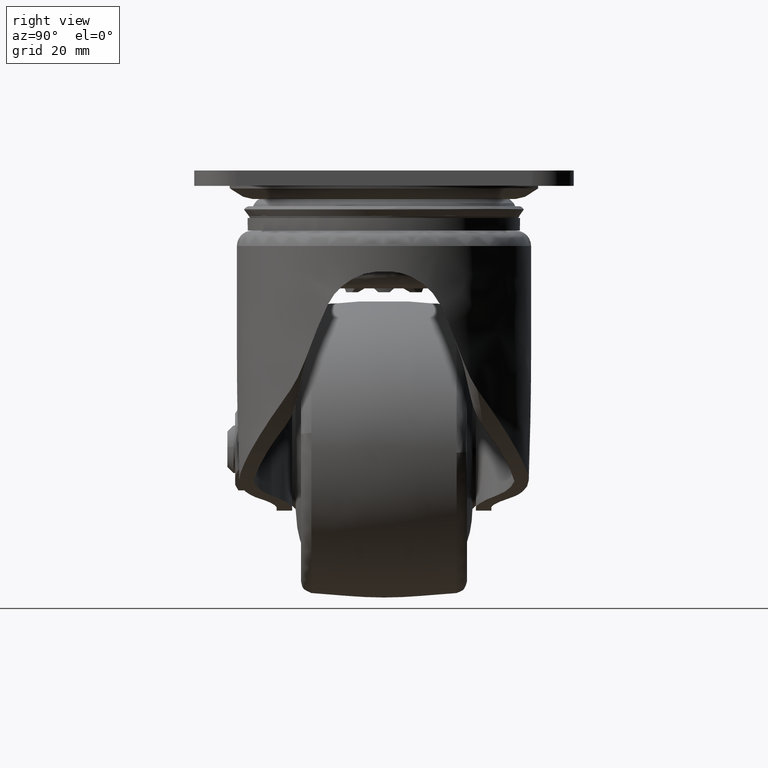
[diagram: clean part render]
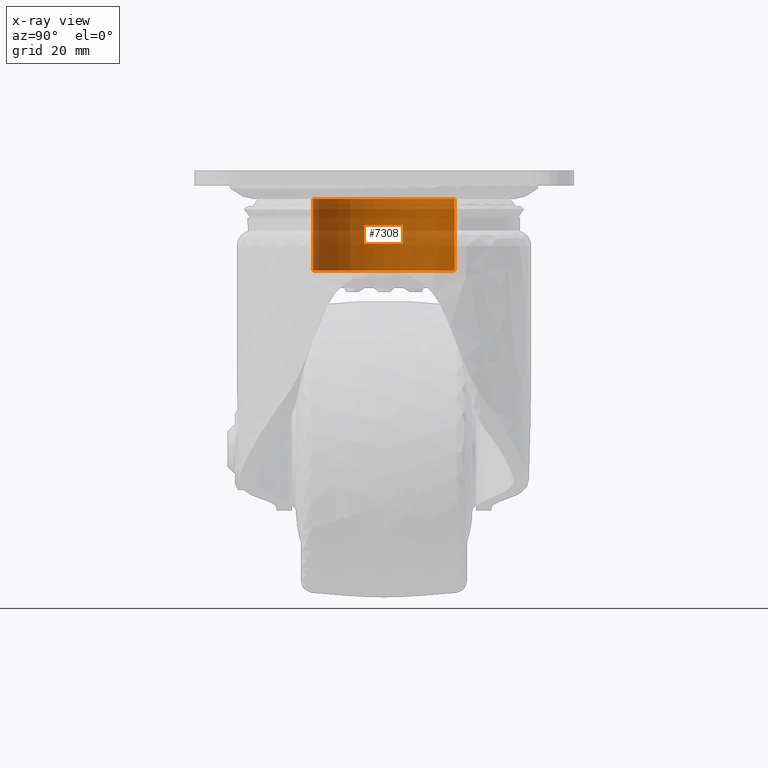
[diagram: x-ray — body ghosted, one internal face saturated and labeled with its STEP entity id]
A machine part, right view, then the same camera in x-ray: the body is ghosted and one INTERNAL B-rep face — a face not visible from any outside direction — is saturated and labeled: STEP entity #7308.
In plain terms, the highlighted face is a freeform B-spline surface patch.
Its self-contained STEP definition (entity closure, byte-faithful):
#7145=CARTESIAN_POINT('',(-1.416403589148358,11.916115175366279,-16.881999999999959));
#7146=VERTEX_POINT('',#7145);
#7164=CARTESIAN_POINT('',(0.732569298149068,-11.977618386943000,-16.882000000000112));
#7165=VERTEX_POINT('',#7164);
#7179=CARTESIAN_POINT('',(0.732569460903938,-11.977618376988850,-4.798080000000000));
#7180=VERTEX_POINT('',#7179);
#7181=CARTESIAN_POINT('',(0.732569460903938,-11.977618376988850,-4.798080000000000));
#7182=CARTESIAN_POINT('',(0.732569298149068,-11.977618386943000,-16.882000000000112));
#7183=QUASI_UNIFORM_CURVE('',1,(#7181,#7182),.UNSPECIFIED.,.F.,.U.);
#7184=EDGE_CURVE('',#7180,#7165,#7183,.T.);
#7201=CARTESIAN_POINT('',(-1.416403678197791,11.916115164781520,-4.798080000000000));
#7202=VERTEX_POINT('',#7201);
#7218=CARTESIAN_POINT('',(-1.416403678197791,11.916115164781520,-4.798080000000000));
#7219=CARTESIAN_POINT('',(-1.416403589148358,11.916115175366279,-16.881999999999959));
#7220=QUASI_UNIFORM_CURVE('',1,(#7218,#7219),.UNSPECIFIED.,.F.,.U.);
#7221=EDGE_CURVE('',#7202,#7146,#7220,.T.);
#7226=CARTESIAN_POINT('',(0.732582474418284,-11.977617581062400,-4.495981999999998));
#7227=CARTESIAN_POINT('',(-11.245035106644117,-12.710200055480684,-4.495981999999998));
#7228=CARTESIAN_POINT('',(-11.977617581062400,-0.732582474418284,-4.495981999999998));
#7229=CARTESIAN_POINT('',(-12.669434360790328,10.578521890074013,-4.495981999999997));
#7230=CARTESIAN_POINT('',(-1.416410815881102,11.916114316363995,-4.495981999999999));
#7231=CARTESIAN_POINT('',(0.732582474418284,-11.977617581062400,-17.191650450000012));
#7232=CARTESIAN_POINT('',(-11.245035106644117,-12.710200055480684,-17.191650450000012));
#7233=CARTESIAN_POINT('',(-11.977617581062400,-0.732582474418284,-17.191650450000012));
#7234=CARTESIAN_POINT('',(-12.669434360790328,10.578521890074013,-17.191650450000012));
#7235=CARTESIAN_POINT('',(-1.416410815881102,11.916114316363995,-17.191650450000012));
#7243=(BOUNDED_SURFACE()B_SPLINE_SURFACE(2,1,((#7226,#7231),(#7227,#7232),(#7228,#7233),(#7229,#7234),(#7230,#7235)),.UNSPECIFIED.,.F.,.F.,.U.)B_SPLINE_SURFACE_WITH_KNOTS((3,2,3),(2,2),(0.0,19.882250993908560,38.969211948060767),(0.0,12.695668450000010),.UNSPECIFIED.)GEOMETRIC_REPRESENTATION_ITEM()RATIONAL_B_SPLINE_SURFACE(((1.0,1.0),(0.707106781186548,0.707106781186548),(1.0,1.0),(0.718822509939086,0.718822509939086),(0.977505800795127,0.977505800795127)))REPRESENTATION_ITEM('')SURFACE());
#7244=CARTESIAN_POINT('',(-12.0,0.0,-16.882000000000001));
#7245=VERTEX_POINT('',#7244);
#7246=CARTESIAN_POINT('',(-12.0,0.0,-16.882000000000001));
#7247=CARTESIAN_POINT('',(-12.0,10.658100820705545,-16.882000000000001));
#7248=CARTESIAN_POINT('',(-1.416403589148358,11.916115175366288,-16.881999999999959));
#7256=(BOUNDED_CURVE()B_SPLINE_CURVE(2,(#7246,#7247,#7248),.UNSPECIFIED.,.F.,.U.)B_SPLINE_CURVE_WITH_KNOTS((3,3),(0.0,0.229562576010579),.UNSPECIFIED.)CURVE()GEOMETRIC_REPRESENTATION_ITEM()RATIONAL_B_SPLINE_CURVE((1.0,0.731050712772614,0.956026955082251))REPRESENTATION_ITEM(''));
#7257=EDGE_CURVE('',#7245,#7146,#7256,.T.);
#7258=ORIENTED_EDGE('',*,*,#7257,.T.);
#7259=ORIENTED_EDGE('',*,*,#7221,.F.);
#7260=CARTESIAN_POINT('',(-12.0,0.0,-4.798080000000000));
#7261=VERTEX_POINT('',#7260);
#7262=CARTESIAN_POINT('',(-12.0,0.0,-4.798080000000000));
#7263=CARTESIAN_POINT('',(-12.0,10.658100740496600,-4.798080000000001));
#7264=CARTESIAN_POINT('',(-1.416403678197792,11.916115164781523,-4.798080000000000));
#7272=(BOUNDED_CURVE()B_SPLINE_CURVE(2,(#7262,#7263,#7264),.UNSPECIFIED.,.F.,.U.)B_SPLINE_CURVE_WITH_KNOTS((3,3),(0.0,0.229562574747613),.UNSPECIFIED.)CURVE()GEOMETRIC_REPRESENTATION_ITEM()RATIONAL_B_SPLINE_CURVE((1.0,0.731050714252271,0.956026952606784))REPRESENTATION_ITEM(''));
#7273=EDGE_CURVE('',#7261,#7202,#7272,.T.);
#7274=ORIENTED_EDGE('',*,*,#7273,.F.);
#7275=CARTESIAN_POINT('',(0.732569460903938,-11.977618376988842,-4.798080000000000));
#7276=CARTESIAN_POINT('',(0.366626634582122,-11.999999999999998,-4.798080000000000));
#7277=CARTESIAN_POINT('',(0.0,-12.0,-4.798080000000000));
#7278=CARTESIAN_POINT('',(-12.0,-12.0,-4.798080000000000));
#7279=CARTESIAN_POINT('',(-12.0,0.0,-4.798080000000000));
#7287=(BOUNDED_CURVE()B_SPLINE_CURVE(2,(#7275,#7276,#7277,#7278,#7279),.UNSPECIFIED.,.F.,.U.)B_SPLINE_CURVE_WITH_KNOTS((3,2,3),(0.739333149711674,0.750000000000000,1.0),.UNSPECIFIED.)CURVE()GEOMETRIC_REPRESENTATION_ITEM()RATIONAL_B_SPLINE_CURVE((0.976072443456796,0.987503007537804,1.0,0.707106781186548,1.0))REPRESENTATION_ITEM(''));
#7288=EDGE_CURVE('',#7180,#7261,#7287,.T.);
#7289=ORIENTED_EDGE('',*,*,#7288,.F.);
#7290=ORIENTED_EDGE('',*,*,#7184,.T.);
#7291=CARTESIAN_POINT('',(0.732569298149068,-11.977618386943007,-16.882000000000115));
#7292=CARTESIAN_POINT('',(0.366626552976524,-12.000000000000005,-16.882000000000001));
#7293=CARTESIAN_POINT('',(0.0,-12.0,-16.882000000000001));
#7294=CARTESIAN_POINT('',(-12.0,-12.0,-16.882000000000005));
#7295=CARTESIAN_POINT('',(-12.0,0.0,-16.882000000000001));
#7303=(BOUNDED_CURVE()B_SPLINE_CURVE(2,(#7291,#7292,#7293,#7294,#7295),.UNSPECIFIED.,.F.,.U.)B_SPLINE_CURVE_WITH_KNOTS((3,2,3),(0.739333152056283,0.750000000000000,1.0),.UNSPECIFIED.)CURVE()GEOMETRIC_REPRESENTATION_ITEM()RATIONAL_B_SPLINE_CURVE((0.976072448481749,0.987503010284685,1.0,0.707106781186548,1.0))REPRESENTATION_ITEM(''));
#7304=EDGE_CURVE('',#7165,#7245,#7303,.T.);
#7305=ORIENTED_EDGE('',*,*,#7304,.T.);
#7306=EDGE_LOOP('',(#7258,#7259,#7274,#7289,#7290,#7305));
#7307=FACE_OUTER_BOUND('',#7306,.T.);
#7308=ADVANCED_FACE('',(#7307),#7243,.F.);